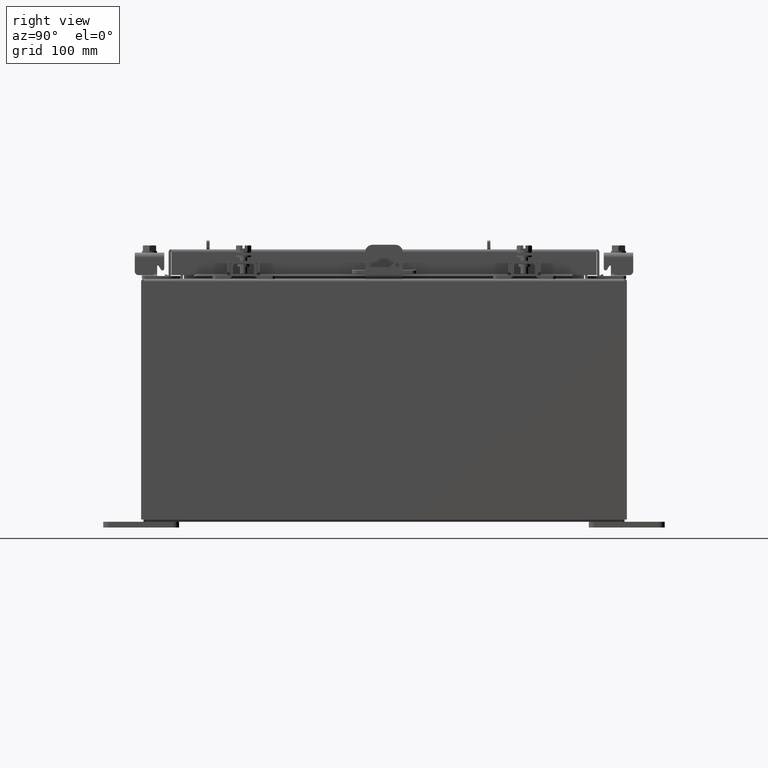
[diagram: clean part render]
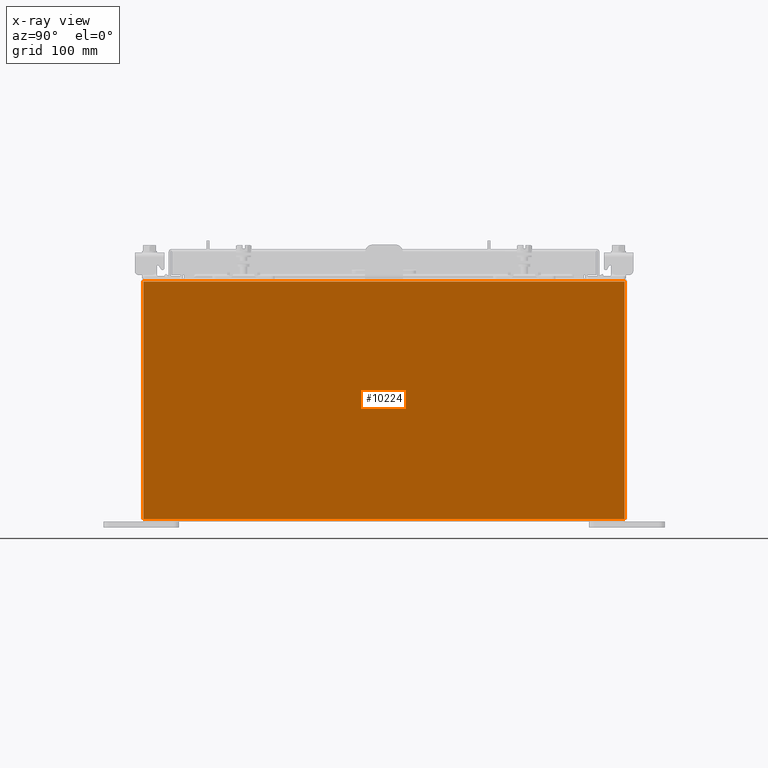
[diagram: x-ray — body ghosted, one internal face saturated and labeled with its STEP entity id]
A machine part, right view, then the same camera in x-ray: the body is ghosted and one INTERNAL B-rep face — a face not visible from any outside direction — is saturated and labeled: STEP entity #10224.
In plain terms, the highlighted planar face has unit normal (-1, 0, 0).
Its self-contained STEP definition (entity closure, byte-faithful):
#556 = CARTESIAN_POINT ( 'NONE',  ( 5.925299999999999100, -7.925300000000000900, -3.323030891118538400E-018 ) ) ;
#1388 = AXIS2_PLACEMENT_3D ( 'NONE', #16969, #8876, #20153 ) ;
#1527 = CARTESIAN_POINT ( 'NONE',  ( 5.925299999999999100, -7.925300000000000000, 0.01300000000000010700 ) ) ;
#2359 = ORIENTED_EDGE ( 'NONE', *, *, #16848, .F. ) ;
#2849 = ORIENTED_EDGE ( 'NONE', *, *, #16720, .F. ) ;
#3098 = DIRECTION ( 'NONE',  ( 3.446996320220387700E-015, -0.0000000000000000000, 1.000000000000000000 ) ) ;
#3498 = LINE ( 'NONE', #17311, #11572 ) ;
#3582 = VECTOR ( 'NONE', #10119, 39.37007874015748100 ) ;
#4189 = VERTEX_POINT ( 'NONE', #18197 ) ;
#4263 = ORIENTED_EDGE ( 'NONE', *, *, #13346, .F. ) ;
#4369 = DIRECTION ( 'NONE',  ( -0.0000000000000000000, -1.000000000000000000, -0.0000000000000000000 ) ) ;
#6716 = CARTESIAN_POINT ( 'NONE',  ( 5.925300000000026700, 7.925299999999998200, 7.925300000000000000 ) ) ;
#7114 = VECTOR ( 'NONE', #3098, 39.37007874015748100 ) ;
#7258 = PLANE ( 'NONE',  #1388 ) ;
#8791 = VERTEX_POINT ( 'NONE', #12341 ) ;
#8876 = DIRECTION ( 'NONE',  ( -1.000000000000000000, 0.0000000000000000000, 3.446996320220386900E-015 ) ) ;
#9498 = DIRECTION ( 'NONE',  ( 0.0000000000000000000, 1.000000000000000000, 0.0000000000000000000 ) ) ;
#9622 = VERTEX_POINT ( 'NONE', #17814 ) ;
#10023 = LINE ( 'NONE', #1527, #18121 ) ;
#10119 = DIRECTION ( 'NONE',  ( -3.446996320220387700E-015, -1.378798528088154900E-016, -1.000000000000000000 ) ) ;
#10224 = ADVANCED_FACE ( 'NONE', ( #20069 ), #7258, .T. ) ;
#10913 = LINE ( 'NONE', #6716, #7114 ) ;
#11174 = LINE ( 'NONE', #556, #3582 ) ;
#11572 = VECTOR ( 'NONE', #4369, 39.37007874015748100 ) ;
#12341 = CARTESIAN_POINT ( 'NONE',  ( 5.925299999999999100, 7.925300000000000000, 0.01300000000000010700 ) ) ;
#12739 = EDGE_CURVE ( 'NONE', #8791, #15910, #10913, .T. ) ;
#13346 = EDGE_CURVE ( 'NONE', #9622, #4189, #11174, .T. ) ;
#14979 = EDGE_LOOP ( 'NONE', ( #4263, #2849, #17546, #2359 ) ) ;
#15910 = VERTEX_POINT ( 'NONE', #18504 ) ;
#16720 = EDGE_CURVE ( 'NONE', #15910, #9622, #3498, .T. ) ;
#16848 = EDGE_CURVE ( 'NONE', #4189, #8791, #10023, .T. ) ;
#16969 = CARTESIAN_POINT ( 'NONE',  ( 5.925299999999999100, 0.0000000000000000000, -2.068197792132232400E-014 ) ) ;
#17311 = CARTESIAN_POINT ( 'NONE',  ( 5.925300000000028400, 7.925300000000000900, 7.837599999999998300 ) ) ;
#17546 = ORIENTED_EDGE ( 'NONE', *, *, #12739, .F. ) ;
#17814 = CARTESIAN_POINT ( 'NONE',  ( 5.925300000000028400, -7.925300000000000900, 7.837599999999998300 ) ) ;
#18121 = VECTOR ( 'NONE', #9498, 39.37007874015748100 ) ;
#18197 = CARTESIAN_POINT ( 'NONE',  ( 5.925299999999999100, -7.925300000000000000, 0.01300000000000010700 ) ) ;
#18504 = CARTESIAN_POINT ( 'NONE',  ( 5.925300000000026700, 7.925299999999998200, 7.837599999999998300 ) ) ;
#20069 = FACE_OUTER_BOUND ( 'NONE', #14979, .T. ) ;
#20153 = DIRECTION ( 'NONE',  ( 3.446996320220386900E-015, 0.0000000000000000000, 1.000000000000000000 ) ) ;